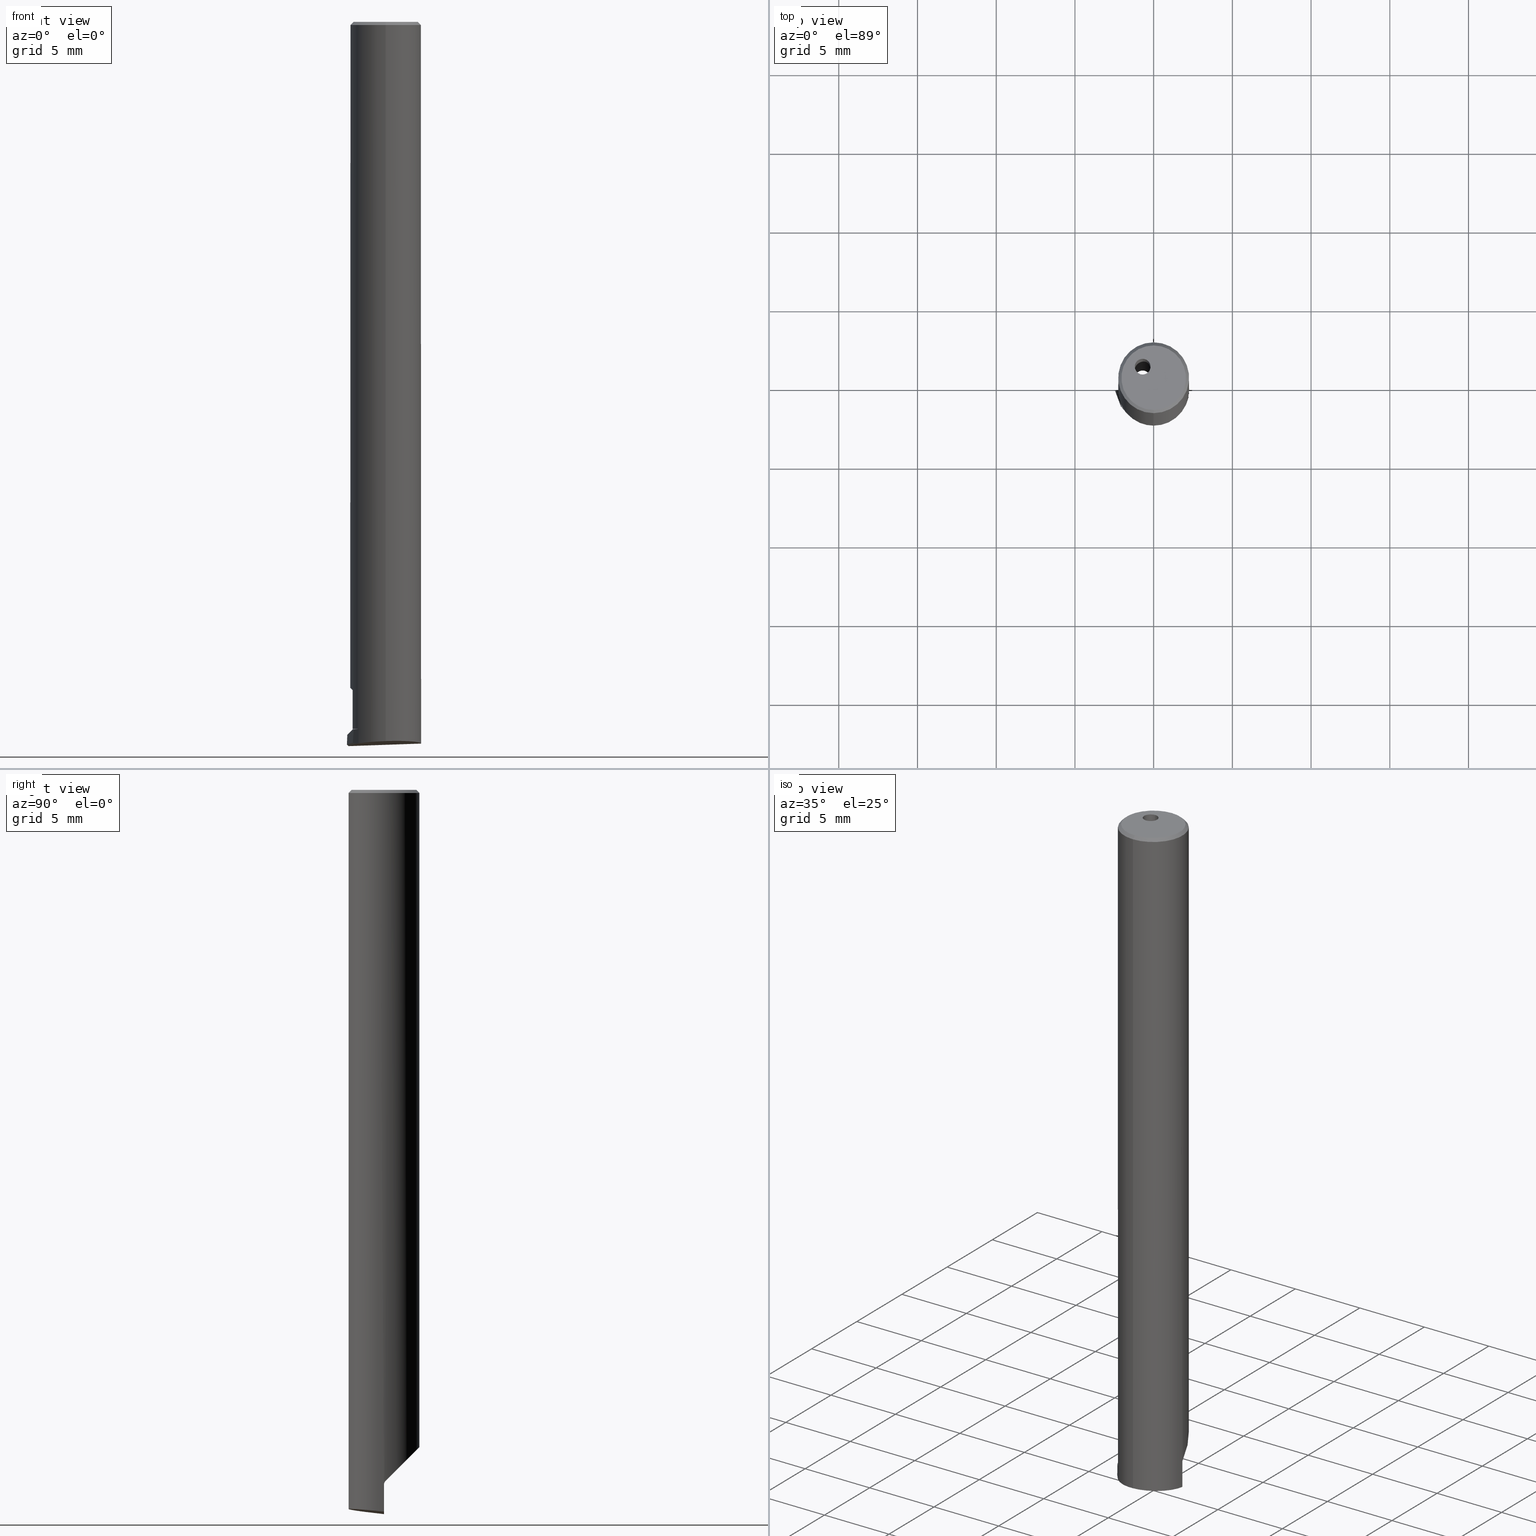
[diagram: canonical four-view strip — front | top / right | iso, engineering-drawing reading convention]
A machine part, canonical four-view strip (front | top / right | iso — engineering-drawing reading convention). The complete STEP part file that produces these views, byte-faithful:
ISO-10303-21;
HEADER;
FILE_DESCRIPTION(('no description'),'unknown implementation level');
FILE_NAME('2DA7B1E6-9203-4665-879B-F61DBD5B19BC_export.stp','  ',('CIMSOURCE GmbH'),('CADClick - KiM GmbH - www.kimweb.de'),'unknown preprocess','ACIS','unknown authorization');
FILE_SCHEMA(('automotive_design'));
ENDSEC;
DATA;
#1=MECHANICAL_DESIGN_GEOMETRIC_PRESENTATION_REPRESENTATION(' ',(#10,#11,#12,#13,#14,#15,#16,#17,#18,#19,#20,#21,#22,#23,#24,#25,#26,#27,#28,#29,#30,#31,#32,#33,#34,#35,#36,#37,#38,#39,#40,#41,#42,#43,#44,#45,#46,#47,#48,#49,#50,#51,#52,#53,#54,#55,#56,#57,#58,#59,#60,#61,#62,#63,#64,#65,#66,#67,#68,#69,#70,#71,#72,#73,#74,#75,#76,#77,#78,#79,#80,#81,#82,#83,#84,#85,#86,#87,#88,#89,#90,#91,#92,#93,#94,#95,#96,#97,#98,#99,#100,#101,#102,#103,#104,#105,#106,#107,#108,#109,#110),#6);
#2=PRODUCT_DEFINITION_CONTEXT('',#111,'design');
#3=APPLICATION_PROTOCOL_DEFINITION('INTERNATIONAL STANDARD','automotive_design',1994,#111);
#4=PRODUCT_CATEGORY_RELATIONSHIP('NONE','NONE',#112,#113);
#5=SHAPE_DEFINITION_REPRESENTATION(#114,#115);
#6= (GEOMETRIC_REPRESENTATION_CONTEXT(3)GLOBAL_UNCERTAINTY_ASSIGNED_CONTEXT((#118))GLOBAL_UNIT_ASSIGNED_CONTEXT((#120,#121,#122))REPRESENTATION_CONTEXT('NONE','WORKSPACE'));
#10=STYLED_ITEM('',(#124),#125);
#11=STYLED_ITEM('',(#126),#127);
#12=STYLED_ITEM('',(#128),#129);
#13=STYLED_ITEM('',(#130),#131);
#14=STYLED_ITEM('',(#132),#133);
#15=STYLED_ITEM('',(#134),#135);
#16=STYLED_ITEM('',(#136),#137);
#17=STYLED_ITEM('',(#138),#139);
#18=STYLED_ITEM('',(#140),#141);
#19=STYLED_ITEM('',(#142),#143);
#20=STYLED_ITEM('',(#144),#145);
#21=STYLED_ITEM('',(#146),#147);
#22=STYLED_ITEM('',(#148),#149);
#23=STYLED_ITEM('',(#150),#151);
#24=STYLED_ITEM('',(#152),#153);
#25=STYLED_ITEM('',(#154),#155);
#26=STYLED_ITEM('',(#156),#157);
#27=STYLED_ITEM('',(#158),#159);
#28=STYLED_ITEM('',(#160),#161);
#29=STYLED_ITEM('',(#162),#163);
#30=STYLED_ITEM('',(#164),#165);
#31=STYLED_ITEM('',(#166),#167);
#32=STYLED_ITEM('',(#168),#169);
#33=STYLED_ITEM('',(#170),#171);
#34=STYLED_ITEM('',(#172),#173);
#35=STYLED_ITEM('',(#174),#175);
#36=STYLED_ITEM('',(#176),#177);
#37=STYLED_ITEM('',(#178),#179);
#38=STYLED_ITEM('',(#180),#181);
#39=STYLED_ITEM('',(#182),#183);
#40=STYLED_ITEM('',(#184),#185);
#41=STYLED_ITEM('',(#186),#187);
#42=STYLED_ITEM('',(#188),#189);
#43=STYLED_ITEM('',(#190),#191);
#44=STYLED_ITEM('',(#192),#193);
#45=STYLED_ITEM('',(#194),#195);
#46=STYLED_ITEM('',(#196),#197);
#47=STYLED_ITEM('',(#198),#199);
#48=STYLED_ITEM('',(#200),#201);
#49=STYLED_ITEM('',(#202),#203);
#50=STYLED_ITEM('',(#204),#205);
#51=STYLED_ITEM('',(#206),#207);
#52=STYLED_ITEM('',(#208),#209);
#53=STYLED_ITEM('',(#210),#211);
#54=STYLED_ITEM('',(#212),#213);
#55=STYLED_ITEM('',(#214),#215);
#56=STYLED_ITEM('',(#216),#217);
#57=STYLED_ITEM('',(#218),#219);
#58=STYLED_ITEM('',(#220),#221);
#59=STYLED_ITEM('',(#222),#223);
#60=STYLED_ITEM('',(#224),#225);
#61=STYLED_ITEM('',(#226),#227);
#62=STYLED_ITEM('',(#228),#229);
#63=STYLED_ITEM('',(#230),#231);
#64=STYLED_ITEM('',(#232),#233);
#65=STYLED_ITEM('',(#234),#235);
#66=STYLED_ITEM('',(#236),#237);
#67=STYLED_ITEM('',(#238),#239);
#68=STYLED_ITEM('',(#240),#241);
#69=STYLED_ITEM('',(#242),#243);
#70=STYLED_ITEM('',(#244),#245);
#71=STYLED_ITEM('',(#246),#247);
#72=STYLED_ITEM('',(#248),#249);
#73=STYLED_ITEM('',(#250),#251);
#74=STYLED_ITEM('',(#252),#253);
#75=STYLED_ITEM('',(#254),#255);
#76=STYLED_ITEM('',(#256),#257);
#77=STYLED_ITEM('',(#258),#259);
#78=STYLED_ITEM('',(#260),#261);
#79=STYLED_ITEM('',(#262),#263);
#80=STYLED_ITEM('',(#264),#265);
#81=STYLED_ITEM('',(#266),#267);
#82=STYLED_ITEM('',(#268),#269);
#83=STYLED_ITEM('',(#270),#271);
#84=STYLED_ITEM('',(#272),#273);
#85=STYLED_ITEM('',(#274),#275);
#86=STYLED_ITEM('',(#276),#277);
#87=STYLED_ITEM('',(#278),#279);
#88=STYLED_ITEM('',(#280),#281);
#89=STYLED_ITEM('',(#282),#283);
#90=STYLED_ITEM('',(#284),#285);
#91=STYLED_ITEM('',(#286),#287);
#92=STYLED_ITEM('',(#288),#289);
#93=STYLED_ITEM('',(#290),#291);
#94=STYLED_ITEM('',(#292),#293);
#95=STYLED_ITEM('',(#294),#295);
#96=STYLED_ITEM('',(#296),#297);
#97=STYLED_ITEM('',(#298),#299);
#98=STYLED_ITEM('',(#300),#301);
#99=STYLED_ITEM('',(#302),#303);
#100=STYLED_ITEM('',(#304),#305);
#101=STYLED_ITEM('',(#306),#307);
#102=STYLED_ITEM('',(#308),#309);
#103=STYLED_ITEM('',(#310),#311);
#104=STYLED_ITEM('',(#312),#313);
#105=STYLED_ITEM('',(#314),#315);
#106=STYLED_ITEM('',(#316),#317);
#107=STYLED_ITEM('',(#318),#319);
#108=STYLED_ITEM('',(#320),#321);
#109=STYLED_ITEM('',(#322),#323);
#110=STYLED_ITEM('',(#324),#325);
#111=APPLICATION_CONTEXT(' ');
#112=PRODUCT_CATEGORY('part','NONE');
#113=PRODUCT_RELATED_PRODUCT_CATEGORY('detail',' ',(#326));
#114=PRODUCT_DEFINITION_SHAPE('NONE','NONE',#327);
#115=ADVANCED_BREP_SHAPE_REPRESENTATION('Fase2',(#173,#328),#6);
#118=UNCERTAINTY_MEASURE_WITH_UNIT(LENGTH_MEASURE(1.0E-006),#120,'','');
#120= (CONVERSION_BASED_UNIT('MILLIMETRE',#331)LENGTH_UNIT()NAMED_UNIT(#334));
#121= (NAMED_UNIT(#336)PLANE_ANGLE_UNIT()SI_UNIT($,.RADIAN.));
#122= (NAMED_UNIT(#336)SOLID_ANGLE_UNIT()SI_UNIT($,.STERADIAN.));
#124=PRESENTATION_STYLE_ASSIGNMENT((#342));
#125=EDGE_CURVE('NONE',#129,#263,#343,.T.);
#126=PRESENTATION_STYLE_ASSIGNMENT((#344));
#127=VERTEX_POINT('NONE',#345);
#128=PRESENTATION_STYLE_ASSIGNMENT((#346));
#129=VERTEX_POINT('NONE',#347);
#130=PRESENTATION_STYLE_ASSIGNMENT((#348));
#131=VERTEX_POINT('NONE',#349);
#132=PRESENTATION_STYLE_ASSIGNMENT((#350));
#133=EDGE_CURVE('NONE',#305,#253,#351,.T.);
#134=PRESENTATION_STYLE_ASSIGNMENT((#352));
#135=ADVANCED_FACE('NONE',(#353),#354,.F.);
#136=PRESENTATION_STYLE_ASSIGNMENT((#355));
#137=EDGE_CURVE('NONE',#255,#323,#356,.T.);
#138=PRESENTATION_STYLE_ASSIGNMENT((#357));
#139=VERTEX_POINT('NONE',#358);
#140=PRESENTATION_STYLE_ASSIGNMENT((#359));
#141=ADVANCED_FACE('NONE',(#360),#361,.F.);
#142=PRESENTATION_STYLE_ASSIGNMENT((#362));
#143=ADVANCED_FACE('NONE',(#363),#364,.F.);
#144=PRESENTATION_STYLE_ASSIGNMENT((#365));
#145=EDGE_CURVE('NONE',#211,#241,#366,.T.);
#146=PRESENTATION_STYLE_ASSIGNMENT((#367));
#147=EDGE_CURVE('NONE',#275,#165,#368,.T.);
#148=PRESENTATION_STYLE_ASSIGNMENT((#369));
#149=VERTEX_POINT('NONE',#370);
#150=PRESENTATION_STYLE_ASSIGNMENT((#371));
#151=EDGE_CURVE('NONE',#321,#281,#372,.T.);
#152=PRESENTATION_STYLE_ASSIGNMENT((#373));
#153=EDGE_CURVE('NONE',#241,#289,#374,.T.);
#154=PRESENTATION_STYLE_ASSIGNMENT((#375));
#155=VERTEX_POINT('NONE',#376);
#156=PRESENTATION_STYLE_ASSIGNMENT((#377));
#157=VERTEX_POINT('NONE',#378);
#158=PRESENTATION_STYLE_ASSIGNMENT((#379));
#159=EDGE_CURVE('NONE',#315,#195,#380,.T.);
#160=PRESENTATION_STYLE_ASSIGNMENT((#381));
#161=EDGE_CURVE('NONE',#157,#279,#382,.T.);
#162=PRESENTATION_STYLE_ASSIGNMENT((#383));
#163=VERTEX_POINT('NONE',#384);
#164=PRESENTATION_STYLE_ASSIGNMENT((#385));
#165=VERTEX_POINT('NONE',#386);
#166=PRESENTATION_STYLE_ASSIGNMENT((#387));
#167=EDGE_CURVE('NONE',#287,#289,#388,.T.);
#168=PRESENTATION_STYLE_ASSIGNMENT((#389));
#169=VERTEX_POINT('NONE',#390);
#170=PRESENTATION_STYLE_ASSIGNMENT((#391));
#171=EDGE_CURVE('NONE',#169,#139,#392,.T.);
#172=PRESENTATION_STYLE_ASSIGNMENT((#393));
#173=MANIFOLD_SOLID_BREP('Fase2',#394);
#174=PRESENTATION_STYLE_ASSIGNMENT((#395));
#175=ADVANCED_FACE('NONE',(#396,#397),#398,.F.);
#176=PRESENTATION_STYLE_ASSIGNMENT((#399));
#177=EDGE_CURVE('NONE',#239,#315,#400,.T.);
#178=PRESENTATION_STYLE_ASSIGNMENT((#401));
#179=EDGE_CURVE('NONE',#165,#321,#402,.T.);
#180=PRESENTATION_STYLE_ASSIGNMENT((#403));
#181=VERTEX_POINT('NONE',#404);
#182=PRESENTATION_STYLE_ASSIGNMENT((#405));
#183=ADVANCED_FACE('NONE',(#406,#407),#408,.F.);
#184=PRESENTATION_STYLE_ASSIGNMENT((#409));
#185=EDGE_CURVE('NONE',#253,#155,#410,.T.);
#186=PRESENTATION_STYLE_ASSIGNMENT((#411));
#187=EDGE_CURVE('NONE',#131,#241,#412,.T.);
#188=PRESENTATION_STYLE_ASSIGNMENT((#413));
#189=EDGE_CURVE('NONE',#263,#129,#414,.T.);
#190=PRESENTATION_STYLE_ASSIGNMENT((#415));
#191=EDGE_CURVE('NONE',#269,#305,#416,.T.);
#192=PRESENTATION_STYLE_ASSIGNMENT((#417));
#193=ADVANCED_FACE('NONE',(#418),#419,.F.);
#194=PRESENTATION_STYLE_ASSIGNMENT((#420));
#195=VERTEX_POINT('NONE',#421);
#196=PRESENTATION_STYLE_ASSIGNMENT((#422));
#197=EDGE_CURVE('NONE',#263,#231,#423,.T.);
#198=PRESENTATION_STYLE_ASSIGNMENT((#424));
#199=ADVANCED_FACE('NONE',(#425),#426,.T.);
#200=PRESENTATION_STYLE_ASSIGNMENT((#427));
#201=EDGE_CURVE('NONE',#149,#253,#428,.T.);
#202=PRESENTATION_STYLE_ASSIGNMENT((#429));
#203=ADVANCED_FACE('NONE',(#430),#431,.F.);
#204=PRESENTATION_STYLE_ASSIGNMENT((#432));
#205=VERTEX_POINT('NONE',#433);
#206=PRESENTATION_STYLE_ASSIGNMENT((#434));
#207=EDGE_CURVE('NONE',#205,#231,#435,.T.);
#208=PRESENTATION_STYLE_ASSIGNMENT((#436));
#209=EDGE_CURVE('NONE',#305,#323,#437,.T.);
#210=PRESENTATION_STYLE_ASSIGNMENT((#438));
#211=VERTEX_POINT('NONE',#439);
#212=PRESENTATION_STYLE_ASSIGNMENT((#440));
#213=EDGE_CURVE('NONE',#181,#205,#441,.T.);
#214=PRESENTATION_STYLE_ASSIGNMENT((#442));
#215=EDGE_CURVE('NONE',#281,#287,#443,.T.);
#216=PRESENTATION_STYLE_ASSIGNMENT((#444));
#217=EDGE_CURVE('NONE',#269,#139,#445,.T.);
#218=PRESENTATION_STYLE_ASSIGNMENT((#446));
#219=EDGE_CURVE('NONE',#139,#299,#447,.T.);
#220=PRESENTATION_STYLE_ASSIGNMENT((#448));
#221=ADVANCED_FACE('NONE',(#449),#450,.T.);
#222=PRESENTATION_STYLE_ASSIGNMENT((#451));
#223=EDGE_CURVE('NONE',#323,#149,#452,.T.);
#224=PRESENTATION_STYLE_ASSIGNMENT((#453));
#225=ADVANCED_FACE('NONE',(#454),#455,.T.);
#226=PRESENTATION_STYLE_ASSIGNMENT((#456));
#227=ADVANCED_FACE('NONE',(#457),#458,.T.);
#228=PRESENTATION_STYLE_ASSIGNMENT((#459));
#229=ADVANCED_FACE('NONE',(#460),#461,.F.);
#230=PRESENTATION_STYLE_ASSIGNMENT((#462));
#231=VERTEX_POINT('NONE',#463);
#232=PRESENTATION_STYLE_ASSIGNMENT((#464));
#233=EDGE_CURVE('NONE',#195,#315,#465,.T.);
#234=PRESENTATION_STYLE_ASSIGNMENT((#466));
#235=EDGE_CURVE('NONE',#279,#211,#467,.T.);
#236=PRESENTATION_STYLE_ASSIGNMENT((#468));
#237=ADVANCED_FACE('NONE',(#469),#470,.T.);
#238=PRESENTATION_STYLE_ASSIGNMENT((#471));
#239=VERTEX_POINT('NONE',#472);
#240=PRESENTATION_STYLE_ASSIGNMENT((#473));
#241=VERTEX_POINT('NONE',#474);
#242=PRESENTATION_STYLE_ASSIGNMENT((#475));
#243=ADVANCED_FACE('NONE',(#476),#477,.F.);
#244=PRESENTATION_STYLE_ASSIGNMENT((#478));
#245=EDGE_CURVE('NONE',#231,#205,#479,.T.);
#246=PRESENTATION_STYLE_ASSIGNMENT((#480));
#247=EDGE_CURVE('NONE',#309,#255,#481,.T.);
#248=PRESENTATION_STYLE_ASSIGNMENT((#482));
#249=EDGE_CURVE('NONE',#211,#299,#483,.T.);
#250=PRESENTATION_STYLE_ASSIGNMENT((#484));
#251=EDGE_CURVE('NONE',#157,#279,#485,.T.);
#252=PRESENTATION_STYLE_ASSIGNMENT((#486));
#253=VERTEX_POINT('NONE',#487);
#254=PRESENTATION_STYLE_ASSIGNMENT((#488));
#255=VERTEX_POINT('NONE',#489);
#256=PRESENTATION_STYLE_ASSIGNMENT((#490));
#257=EDGE_CURVE('NONE',#287,#275,#491,.T.);
#258=PRESENTATION_STYLE_ASSIGNMENT((#492));
#259=EDGE_CURVE('NONE',#289,#309,#493,.T.);
#260=PRESENTATION_STYLE_ASSIGNMENT((#494));
#261=EDGE_CURVE('NONE',#163,#275,#495,.T.);
#262=PRESENTATION_STYLE_ASSIGNMENT((#496));
#263=VERTEX_POINT('NONE',#497);
#264=PRESENTATION_STYLE_ASSIGNMENT((#498));
#265=EDGE_CURVE('NONE',#149,#181,#499,.T.);
#266=PRESENTATION_STYLE_ASSIGNMENT((#500));
#267=EDGE_CURVE('NONE',#299,#131,#501,.T.);
#268=PRESENTATION_STYLE_ASSIGNMENT((#502));
#269=VERTEX_POINT('NONE',#503);
#270=PRESENTATION_STYLE_ASSIGNMENT((#504));
#271=EDGE_CURVE('NONE',#155,#157,#505,.T.);
#272=PRESENTATION_STYLE_ASSIGNMENT((#506));
#273=ADVANCED_FACE('NONE',(#507),#508,.F.);
#274=PRESENTATION_STYLE_ASSIGNMENT((#509));
#275=VERTEX_POINT('NONE',#510);
#276=PRESENTATION_STYLE_ASSIGNMENT((#511));
#277=EDGE_CURVE('NONE',#181,#155,#512,.T.);
#278=PRESENTATION_STYLE_ASSIGNMENT((#513));
#279=VERTEX_POINT('NONE',#514);
#280=PRESENTATION_STYLE_ASSIGNMENT((#515));
#281=VERTEX_POINT('NONE',#516);
#282=PRESENTATION_STYLE_ASSIGNMENT((#517));
#283=EDGE_CURVE('NONE',#127,#195,#518,.T.);
#284=PRESENTATION_STYLE_ASSIGNMENT((#519));
#285=ADVANCED_FACE('NONE',(#520),#521,.F.);
#286=PRESENTATION_STYLE_ASSIGNMENT((#522));
#287=VERTEX_POINT('NONE',#523);
#288=PRESENTATION_STYLE_ASSIGNMENT((#524));
#289=VERTEX_POINT('NONE',#525);
#290=PRESENTATION_STYLE_ASSIGNMENT((#526));
#291=EDGE_CURVE('NONE',#129,#205,#527,.T.);
#292=PRESENTATION_STYLE_ASSIGNMENT((#528));
#293=ADVANCED_FACE('NONE',(#529),#530,.F.);
#294=PRESENTATION_STYLE_ASSIGNMENT((#531));
#295=ADVANCED_FACE('NONE',(#532),#533,.F.);
#296=PRESENTATION_STYLE_ASSIGNMENT((#534));
#297=EDGE_CURVE('NONE',#309,#231,#535,.T.);
#298=PRESENTATION_STYLE_ASSIGNMENT((#536));
#299=VERTEX_POINT('NONE',#537);
#300=PRESENTATION_STYLE_ASSIGNMENT((#538));
#301=EDGE_CURVE('NONE',#239,#127,#539,.T.);
#302=PRESENTATION_STYLE_ASSIGNMENT((#540));
#303=EDGE_CURVE('NONE',#127,#239,#541,.T.);
#304=PRESENTATION_STYLE_ASSIGNMENT((#542));
#305=VERTEX_POINT('NONE',#543);
#306=PRESENTATION_STYLE_ASSIGNMENT((#544));
#307=EDGE_CURVE('NONE',#163,#255,#545,.T.);
#308=PRESENTATION_STYLE_ASSIGNMENT((#546));
#309=VERTEX_POINT('NONE',#547);
#310=PRESENTATION_STYLE_ASSIGNMENT((#548));
#311=EDGE_CURVE('NONE',#131,#281,#549,.T.);
#312=PRESENTATION_STYLE_ASSIGNMENT((#550));
#313=ADVANCED_FACE('NONE',(#551),#552,.F.);
#314=PRESENTATION_STYLE_ASSIGNMENT((#553));
#315=VERTEX_POINT('NONE',#554);
#316=PRESENTATION_STYLE_ASSIGNMENT((#555));
#317=EDGE_CURVE('NONE',#165,#163,#556,.T.);
#318=PRESENTATION_STYLE_ASSIGNMENT((#557));
#319=EDGE_CURVE('NONE',#169,#269,#558,.T.);
#320=PRESENTATION_STYLE_ASSIGNMENT((#559));
#321=VERTEX_POINT('NONE',#560);
#322=PRESENTATION_STYLE_ASSIGNMENT((#561));
#323=VERTEX_POINT('NONE',#562);
#324=PRESENTATION_STYLE_ASSIGNMENT((#563));
#325=EDGE_CURVE('NONE',#321,#169,#564,.T.);
#326=PRODUCT('Fase2','Fase2','PART-Fase2-DESC',(#565));
#327=PRODUCT_DEFINITION('NONE','NONE',#566,#2);
#328=AXIS2_PLACEMENT_3D('',#567,#568,#569);
#331=LENGTH_MEASURE_WITH_UNIT(LENGTH_MEASURE(1.0),#570);
#334=DIMENSIONAL_EXPONENTS(1.0,0.0,0.0,0.0,0.0,0.0,0.0);
#336=DIMENSIONAL_EXPONENTS(0.0,0.0,0.0,0.0,0.0,0.0,0.0);
#342=CURVE_STYLE('',#571,POSITIVE_LENGTH_MEASURE(1.0E-006),#572);
#343=CIRCLE('',#573,2.05);
#344=POINT_STYLE(' ',#574,POSITIVE_LENGTH_MEASURE(1.0E-006),#575);
#345=CARTESIAN_POINT('',(-0.7,0.2,-43.8));
#346=POINT_STYLE(' ',#576,POSITIVE_LENGTH_MEASURE(1.0E-006),#577);
#347=CARTESIAN_POINT('',(0.0,2.05,0.0));
#348=POINT_STYLE(' ',#578,POSITIVE_LENGTH_MEASURE(1.0E-006),#579);
#349=CARTESIAN_POINT('',(-2.03175872927735,-1.07902284552398,-44.9505072995227));
#350=CURVE_STYLE('',#580,POSITIVE_LENGTH_MEASURE(1.0E-006),#581);
#351=CIRCLE('',#582,0.25);
#352=SURFACE_STYLE_USAGE(.BOTH.,#583);
#353=FACE_OUTER_BOUND('',#584,.T.);
#354=CYLINDRICAL_SURFACE('',#585,0.5);
#355=CURVE_STYLE('',#586,POSITIVE_LENGTH_MEASURE(1.0E-006),#587);
#356=LINE('',#588,#589);
#357=POINT_STYLE(' ',#590,POSITIVE_LENGTH_MEASURE(1.0E-006),#591);
#358=CARTESIAN_POINT('',(-2.1,-0.891479699096621,-44.95));
#359=SURFACE_STYLE_USAGE(.BOTH.,#592);
#360=FACE_OUTER_BOUND('',#593,.T.);
#361=CYLINDRICAL_SURFACE('',#594,0.5);
#362=SURFACE_STYLE_USAGE(.BOTH.,#595);
#363=FACE_OUTER_BOUND('',#596,.T.);
#364=PLANE('',#597);
#365=CURVE_STYLE('',#598,POSITIVE_LENGTH_MEASURE(1.0E-006),#599);
#366=CIRCLE('',#600,2.25);
#367=CURVE_STYLE('',#601,POSITIVE_LENGTH_MEASURE(1.0E-006),#602);
#368=LINE('',#603,#604);
#369=POINT_STYLE(' ',#605,POSITIVE_LENGTH_MEASURE(1.0E-006),#606);
#370=CARTESIAN_POINT('',(2.24880820606123,0.0732233047033652,-43.9267766952966));
#371=CURVE_STYLE('',#607,POSITIVE_LENGTH_MEASURE(1.0E-006),#608);
#372=LINE('',#609,#610);
#373=CURVE_STYLE('',#611,POSITIVE_LENGTH_MEASURE(1.0E-006),#612);
#374=LINE('',#613,#614);
#375=POINT_STYLE(' ',#615,POSITIVE_LENGTH_MEASURE(1.0E-006),#616);
#376=CARTESIAN_POINT('',(-2.1,0.807774721070173,-43.1922252789298));
#377=POINT_STYLE(' ',#617,POSITIVE_LENGTH_MEASURE(1.0E-006),#618);
#378=CARTESIAN_POINT('',(-2.1,0.807774721070152,-42.45));
#379=CURVE_STYLE('',#619,POSITIVE_LENGTH_MEASURE(1.0E-006),#620);
#380=CIRCLE('',#621,0.5);
#381=CURVE_STYLE('',#622,POSITIVE_LENGTH_MEASURE(1.0E-006),#623);
#382=(B_SPLINE_CURVE(3,(#625,#626,#627,#628),.UNSPECIFIED.,.F.,.F.)B_SPLINE_CURVE_WITH_KNOTS((4,4),(5.91597728662176,6.65039332773741),.UNSPECIFIED.)RATIONAL_B_SPLINE_CURVE((1.0,0.955555555555558,0.955555555555558,1.0))BOUNDED_CURVE()REPRESENTATION_ITEM('')GEOMETRIC_REPRESENTATION_ITEM()CURVE());
#383=POINT_STYLE(' ',#635,POSITIVE_LENGTH_MEASURE(1.0E-006),#636);
#384=CARTESIAN_POINT('',(-2.34825449350712,0.0,-46.0));
#385=POINT_STYLE(' ',#637,POSITIVE_LENGTH_MEASURE(1.0E-006),#638);
#386=CARTESIAN_POINT('',(-2.35741138789529,0.0,-46.0));
#387=CURVE_STYLE('',#639,POSITIVE_LENGTH_MEASURE(1.0E-006),#640);
#388=LINE('',#641,#642);
#389=POINT_STYLE(' ',#643,POSITIVE_LENGTH_MEASURE(1.0E-006),#644);
#390=CARTESIAN_POINT('',(-2.43699546910177,0.0,-45.2869954691018));
#391=CURVE_STYLE('',#645,POSITIVE_LENGTH_MEASURE(1.0E-006),#646);
#392=LINE('',#647,#648);
#393=SURFACE_STYLE_USAGE(.BOTH.,#649);
#394=CLOSED_SHELL('',(#135,#227,#199,#175,#183,#237,#225,#293,#221,#193,#295,#285,#141,#203,#229,#243,#273,#143,#313));
#395=SURFACE_STYLE_USAGE(.BOTH.,#650);
#396=FACE_OUTER_BOUND('',#651,.T.);
#397=FACE_BOUND('',#652,.T.);
#398=PLANE('',#653);
#399=CURVE_STYLE('',#654,POSITIVE_LENGTH_MEASURE(1.0E-006),#655);
#400=LINE('',#656,#657);
#401=CURVE_STYLE('',#658,POSITIVE_LENGTH_MEASURE(1.0E-006),#659);
#402=LINE('',#660,#661);
#403=POINT_STYLE(' ',#662,POSITIVE_LENGTH_MEASURE(1.0E-006),#663);
#404=CARTESIAN_POINT('',(2.75545529808154E-016,2.25,-41.75));
#405=SURFACE_STYLE_USAGE(.BOTH.,#664);
#406=FACE_OUTER_BOUND('',#665,.T.);
#407=FACE_BOUND('',#666,.T.);
#408=PLANE('',#667);
#409=CURVE_STYLE('',#668,POSITIVE_LENGTH_MEASURE(1.0E-006),#669);
#410=LINE('',#670,#671);
#411=CURVE_STYLE('',#672,POSITIVE_LENGTH_MEASURE(1.0E-006),#673);
#412=B_SPLINE_CURVE_WITH_KNOTS('',3,(#674,#675,#676,#677),.UNSPECIFIED.,.F.,.F.,(4,4),(0.000459668553503559,0.000939804323552424),.UNSPECIFIED.);
#413=CURVE_STYLE('',#678,POSITIVE_LENGTH_MEASURE(1.0E-006),#679);
#414=CIRCLE('',#680,2.05);
#415=CURVE_STYLE('',#681,POSITIVE_LENGTH_MEASURE(1.0E-006),#682);
#416=LINE('',#683,#684);
#417=SURFACE_STYLE_USAGE(.BOTH.,#685);
#418=FACE_OUTER_BOUND('',#686,.T.);
#419=PLANE('',#687);
#420=POINT_STYLE(' ',#688,POSITIVE_LENGTH_MEASURE(1.0E-006),#689);
#421=CARTESIAN_POINT('',(-0.7,0.2,0.0));
#422=CURVE_STYLE('',#690,POSITIVE_LENGTH_MEASURE(1.0E-006),#691);
#423=LINE('',#692,#693);
#424=SURFACE_STYLE_USAGE(.BOTH.,#694);
#425=FACE_OUTER_BOUND('',#695,.T.);
#426=CYLINDRICAL_SURFACE('',#696,2.25);
#427=CURVE_STYLE('',#697,POSITIVE_LENGTH_MEASURE(1.0E-006),#698);
#428=LINE('',#699,#700);
#429=SURFACE_STYLE_USAGE(.BOTH.,#701);
#430=FACE_OUTER_BOUND('',#702,.T.);
#431=PLANE('',#703);
#432=POINT_STYLE(' ',#704,POSITIVE_LENGTH_MEASURE(1.0E-006),#705);
#433=CARTESIAN_POINT('',(2.75545529808154E-016,2.25,-0.200000000000001));
#434=CURVE_STYLE('',#706,POSITIVE_LENGTH_MEASURE(1.0E-006),#707);
#435=CIRCLE('',#708,2.25);
#436=CURVE_STYLE('',#709,POSITIVE_LENGTH_MEASURE(1.0E-006),#710);
#437=LINE('',#711,#712);
#438=POINT_STYLE(' ',#713,POSITIVE_LENGTH_MEASURE(1.0E-006),#714);
#439=CARTESIAN_POINT('',(-2.1,-0.807774721070175,-44.9));
#440=CURVE_STYLE('',#715,POSITIVE_LENGTH_MEASURE(1.0E-006),#716);
#441=LINE('',#717,#718);
#442=CURVE_STYLE('',#719,POSITIVE_LENGTH_MEASURE(1.0E-006),#720);
#443=LINE('',#721,#722);
#444=CURVE_STYLE('',#723,POSITIVE_LENGTH_MEASURE(1.0E-006),#724);
#445=LINE('',#725,#726);
#446=CURVE_STYLE('',#727,POSITIVE_LENGTH_MEASURE(1.0E-006),#728);
#447=LINE('',#729,#730);
#448=SURFACE_STYLE_USAGE(.BOTH.,#731);
#449=FACE_OUTER_BOUND('',#732,.T.);
#450=CONICAL_SURFACE('',#733,2.05,0.785398163397445);
#451=CURVE_STYLE('',#734,POSITIVE_LENGTH_MEASURE(1.0E-006),#735);
#452=B_SPLINE_CURVE_WITH_KNOTS('',3,(#736,#737,#738,#739),.UNSPECIFIED.,.F.,.F.,(4,4),(0.0,0.000195194090627246),.UNSPECIFIED.);
#453=SURFACE_STYLE_USAGE(.BOTH.,#740);
#454=FACE_OUTER_BOUND('',#741,.T.);
#455=CONICAL_SURFACE('',#742,2.43141435954025,0.785398163397506);
#456=SURFACE_STYLE_USAGE(.BOTH.,#743);
#457=FACE_OUTER_BOUND('',#744,.T.);
#458=CONICAL_SURFACE('',#745,2.05,0.785398163397445);
#459=SURFACE_STYLE_USAGE(.BOTH.,#746);
#460=FACE_OUTER_BOUND('',#747,.T.);
#461=PLANE('',#748);
#462=POINT_STYLE(' ',#749,POSITIVE_LENGTH_MEASURE(1.0E-006),#750);
#463=CARTESIAN_POINT('',(0.0,-2.25,-0.200000000000001));
#464=CURVE_STYLE('',#751,POSITIVE_LENGTH_MEASURE(1.0E-006),#752);
#465=CIRCLE('',#753,0.5);
#466=CURVE_STYLE('',#754,POSITIVE_LENGTH_MEASURE(1.0E-006),#755);
#467=LINE('',#756,#757);
#468=SURFACE_STYLE_USAGE(.BOTH.,#758);
#469=FACE_OUTER_BOUND('',#759,.T.);
#470=CYLINDRICAL_SURFACE('',#760,2.25);
#471=POINT_STYLE(' ',#761,POSITIVE_LENGTH_MEASURE(1.0E-006),#762);
#472=CARTESIAN_POINT('',(-0.7,1.2,-42.8));
#473=POINT_STYLE(' ',#763,POSITIVE_LENGTH_MEASURE(1.0E-006),#764);
#474=CARTESIAN_POINT('',(-1.7235999970177,-1.44627212179472,-44.9));
#475=SURFACE_STYLE_USAGE(.BOTH.,#765);
#476=FACE_OUTER_BOUND('',#766,.T.);
#477=PLANE('',#767);
#478=CURVE_STYLE('',#768,POSITIVE_LENGTH_MEASURE(1.0E-006),#769);
#479=CIRCLE('',#770,2.25);
#480=CURVE_STYLE('',#771,POSITIVE_LENGTH_MEASURE(1.0E-006),#772);
#481=(B_SPLINE_CURVE(3,(#774,#775,#776,#777),.UNSPECIFIED.,.F.,.F.)B_SPLINE_CURVE_WITH_KNOTS((4,4),(5.96259332171268,7.53338964850758),.UNSPECIFIED.)RATIONAL_B_SPLINE_CURVE((1.0,0.804737854124365,0.804737854124365,1.0))BOUNDED_CURVE()REPRESENTATION_ITEM('')GEOMETRIC_REPRESENTATION_ITEM()CURVE());
#482=CURVE_STYLE('',#784,POSITIVE_LENGTH_MEASURE(1.0E-006),#785);
#483=B_SPLINE_CURVE_WITH_KNOTS('',3,(#786,#787,#788,#789),.UNSPECIFIED.,.F.,.F.,(4,4),(0.00170651212628569,0.00179285955997892),.UNSPECIFIED.);
#484=CURVE_STYLE('',#790,POSITIVE_LENGTH_MEASURE(1.0E-006),#791);
#485=LINE('',#792,#793);
#486=POINT_STYLE(' ',#794,POSITIVE_LENGTH_MEASURE(1.0E-006),#795);
#487=CARTESIAN_POINT('',(-2.1,0.0732233047033637,-43.9267766952966));
#488=POINT_STYLE(' ',#796,POSITIVE_LENGTH_MEASURE(1.0E-006),#797);
#489=CARTESIAN_POINT('',(2.25,0.0,-45.8394254147678));
#490=CURVE_STYLE('',#798,POSITIVE_LENGTH_MEASURE(1.0E-006),#799);
#491=LINE('',#800,#801);
#492=CURVE_STYLE('',#802,POSITIVE_LENGTH_MEASURE(1.0E-006),#803);
#493=(B_SPLINE_CURVE(3,(#805,#806,#807,#808),.UNSPECIFIED.,.F.,.F.)B_SPLINE_CURVE_WITH_KNOTS((4,4),(5.08992869571552,5.96259332171268),.UNSPECIFIED.)RATIONAL_B_SPLINE_CURVE((1.0,0.9375385246911,0.9375385246911,1.0))BOUNDED_CURVE()REPRESENTATION_ITEM('')GEOMETRIC_REPRESENTATION_ITEM()CURVE());
#494=CURVE_STYLE('',#815,POSITIVE_LENGTH_MEASURE(1.0E-006),#816);
#495=LINE('',#817,#818);
#496=POINT_STYLE(' ',#819,POSITIVE_LENGTH_MEASURE(1.0E-006),#820);
#497=CARTESIAN_POINT('',(2.63299061816681E-016,-2.05,0.0));
#498=CURVE_STYLE('',#821,POSITIVE_LENGTH_MEASURE(1.0E-006),#822);
#499=(B_SPLINE_CURVE(3,(#824,#825,#826,#827),.UNSPECIFIED.,.F.,.F.)B_SPLINE_CURVE_WITH_KNOTS((4,4),(4.74493841856295,6.28318530717959),.UNSPECIFIED.)RATIONAL_B_SPLINE_CURVE((1.0,0.812347063356753,0.812347063356753,1.0))BOUNDED_CURVE()REPRESENTATION_ITEM('')GEOMETRIC_REPRESENTATION_ITEM()CURVE());
#500=CURVE_STYLE('',#834,POSITIVE_LENGTH_MEASURE(1.0E-006),#835);
#501=B_SPLINE_CURVE_WITH_KNOTS('',3,(#836,#837,#838,#839),.UNSPECIFIED.,.F.,.F.,(4,4),(8.64710636591897E-005,0.000288467425746563),.UNSPECIFIED.);
#502=POINT_STYLE(' ',#840,POSITIVE_LENGTH_MEASURE(1.0E-006),#841);
#503=CARTESIAN_POINT('',(-2.1,0.0,-44.95));
#504=CURVE_STYLE('',#842,POSITIVE_LENGTH_MEASURE(1.0E-006),#843);
#505=LINE('',#844,#845);
#506=SURFACE_STYLE_USAGE(.BOTH.,#846);
#507=FACE_OUTER_BOUND('',#847,.T.);
#508=PLANE('',#848);
#509=POINT_STYLE(' ',#849,POSITIVE_LENGTH_MEASURE(1.0E-006),#850);
#510=CARTESIAN_POINT('',(-2.35611274506229,-0.00260930516779773,-46.0));
#511=CURVE_STYLE('',#851,POSITIVE_LENGTH_MEASURE(1.0E-006),#852);
#512=(B_SPLINE_CURVE(3,(#854,#855,#856,#857),.UNSPECIFIED.,.F.,.F.)B_SPLINE_CURVE_WITH_KNOTS((4,4),(0.0,1.20358830623706),.UNSPECIFIED.)RATIONAL_B_SPLINE_CURVE((1.0,0.882880821351591,0.882880821351591,1.0))BOUNDED_CURVE()REPRESENTATION_ITEM('')GEOMETRIC_REPRESENTATION_ITEM()CURVE());
#513=POINT_STYLE(' ',#864,POSITIVE_LENGTH_MEASURE(1.0E-006),#865);
#514=CARTESIAN_POINT('',(-2.1,-0.807774721070152,-42.45));
#515=POINT_STYLE(' ',#866,POSITIVE_LENGTH_MEASURE(1.0E-006),#867);
#516=CARTESIAN_POINT('',(-2.08663971339108,-1.01361823555236,-45.7867306170929));
#517=CURVE_STYLE('',#868,POSITIVE_LENGTH_MEASURE(1.0E-006),#869);
#518=LINE('',#870,#871);
#519=SURFACE_STYLE_USAGE(.BOTH.,#872);
#520=FACE_OUTER_BOUND('',#873,.T.);
#521=PLANE('',#874);
#522=POINT_STYLE(' ',#875,POSITIVE_LENGTH_MEASURE(1.0E-006),#876);
#523=CARTESIAN_POINT('',(-1.90315148815602,-1.23229098717498,-45.8548587111491));
#524=POINT_STYLE(' ',#877,POSITIVE_LENGTH_MEASURE(1.0E-006),#878);
#525=CARTESIAN_POINT('',(-1.7235999970177,-1.44627212179472,-45.8260846025512));
#526=CURVE_STYLE('',#879,POSITIVE_LENGTH_MEASURE(1.0E-006),#880);
#527=LINE('',#881,#882);
#528=SURFACE_STYLE_USAGE(.BOTH.,#883);
#529=FACE_OUTER_BOUND('',#884,.T.);
#530=PLANE('',#885);
#531=SURFACE_STYLE_USAGE(.BOTH.,#886);
#532=FACE_OUTER_BOUND('',#887,.T.);
#533=CYLINDRICAL_SURFACE('',#888,0.25);
#534=CURVE_STYLE('',#889,POSITIVE_LENGTH_MEASURE(1.0E-006),#890);
#535=LINE('',#891,#892);
#536=POINT_STYLE(' ',#893,POSITIVE_LENGTH_MEASURE(1.0E-006),#894);
#537=CARTESIAN_POINT('',(-2.1,-0.889500608233803,-44.9306164368539));
#538=CURVE_STYLE('',#895,POSITIVE_LENGTH_MEASURE(1.0E-006),#896);
#539=(B_SPLINE_CURVE(3,(#898,#899,#900,#901),.UNSPECIFIED.,.F.,.F.)B_SPLINE_CURVE_WITH_KNOTS((4,4),(0.0,3.14159265358979),.UNSPECIFIED.)RATIONAL_B_SPLINE_CURVE((1.0,0.333333333333333,0.333333333333333,1.0))BOUNDED_CURVE()REPRESENTATION_ITEM('')GEOMETRIC_REPRESENTATION_ITEM()CURVE());
#540=CURVE_STYLE('',#908,POSITIVE_LENGTH_MEASURE(1.0E-006),#909);
#541=(B_SPLINE_CURVE(3,(#911,#912,#913,#914),.UNSPECIFIED.,.F.,.F.)B_SPLINE_CURVE_WITH_KNOTS((4,4),(3.14159265358979,6.28318530717959),.UNSPECIFIED.)RATIONAL_B_SPLINE_CURVE((1.0,0.333333333333333,0.333333333333333,1.0))BOUNDED_CURVE()REPRESENTATION_ITEM('')GEOMETRIC_REPRESENTATION_ITEM()CURVE());
#542=POINT_STYLE(' ',#921,POSITIVE_LENGTH_MEASURE(1.0E-006),#922);
#543=CARTESIAN_POINT('',(-2.1,-2.16840434497101E-016,-44.1035533905933));
#544=CURVE_STYLE('',#923,POSITIVE_LENGTH_MEASURE(1.0E-006),#924);
#545=LINE('',#925,#926);
#546=POINT_STYLE(' ',#927,POSITIVE_LENGTH_MEASURE(1.0E-006),#928);
#547=CARTESIAN_POINT('',(0.0,-2.25,-45.6813684689799));
#548=CURVE_STYLE('',#929,POSITIVE_LENGTH_MEASURE(1.0E-006),#930);
#549=LINE('',#931,#932);
#550=SURFACE_STYLE_USAGE(.BOTH.,#933);
#551=FACE_OUTER_BOUND('',#934,.T.);
#552=PLANE('',#935);
#553=POINT_STYLE(' ',#936,POSITIVE_LENGTH_MEASURE(1.0E-006),#937);
#554=CARTESIAN_POINT('',(-0.7,1.2,0.0));
#555=CURVE_STYLE('',#938,POSITIVE_LENGTH_MEASURE(1.0E-006),#939);
#556=LINE('',#940,#941);
#557=CURVE_STYLE('',#942,POSITIVE_LENGTH_MEASURE(1.0E-006),#943);
#558=LINE('',#944,#945);
#559=POINT_STYLE(' ',#946,POSITIVE_LENGTH_MEASURE(1.0E-006),#947);
#560=CARTESIAN_POINT('',(-2.46001259250032,0.0,-45.9063695929868));
#561=POINT_STYLE(' ',#948,POSITIVE_LENGTH_MEASURE(1.0E-006),#949);
#562=CARTESIAN_POINT('',(2.25,0.0,-44.1035533905933));
#563=CURVE_STYLE('',#950,POSITIVE_LENGTH_MEASURE(1.0E-006),#951);
#564=LINE('',#952,#953);
#565=PRODUCT_CONTEXT('',#111,'mechanical');
#566=PRODUCT_DEFINITION_FORMATION_WITH_SPECIFIED_SOURCE(' ','NONE',#326,.NOT_KNOWN.);
#567=CARTESIAN_POINT('',(0.0,0.0,0.0));
#568=DIRECTION('',(0.0,0.0,1.0));
#569=DIRECTION('',(1.0,0.0,0.0));
#570= (NAMED_UNIT(#334)LENGTH_UNIT()SI_UNIT(.MILLI.,.METRE.));
#571=DRAUGHTING_PRE_DEFINED_CURVE_FONT('continuous');
#572=COLOUR_RGB('',1.0,1.0,1.0);
#573=AXIS2_PLACEMENT_3D('',#955,#956,#957);
#574=PRE_DEFINED_MARKER('');
#575=COLOUR_RGB('',1.0,1.0,1.0);
#576=PRE_DEFINED_MARKER('');
#577=COLOUR_RGB('',1.0,1.0,1.0);
#578=PRE_DEFINED_MARKER('');
#579=COLOUR_RGB('',1.0,1.0,1.0);
#580=DRAUGHTING_PRE_DEFINED_CURVE_FONT('continuous');
#581=COLOUR_RGB('',1.0,1.0,1.0);
#582=AXIS2_PLACEMENT_3D('',#958,#959,#960);
#583=SURFACE_SIDE_STYLE('',(#961));
#584=EDGE_LOOP('',(#962,#963,#964,#965));
#585=AXIS2_PLACEMENT_3D('',#966,#967,#968);
#586=DRAUGHTING_PRE_DEFINED_CURVE_FONT('continuous');
#587=COLOUR_RGB('',1.0,1.0,1.0);
#588=CARTESIAN_POINT('',(2.25,0.0,0.0));
#589=VECTOR('',#969,1000.0);
#590=PRE_DEFINED_MARKER('');
#591=COLOUR_RGB('',1.0,1.0,1.0);
#592=SURFACE_SIDE_STYLE('',(#970));
#593=EDGE_LOOP('',(#971,#972,#973,#974));
#594=AXIS2_PLACEMENT_3D('',#975,#976,#977);
#595=SURFACE_SIDE_STYLE('',(#978));
#596=EDGE_LOOP('',(#979,#980,#981,#982,#983,#984));
#597=AXIS2_PLACEMENT_3D('',#985,#986,#987);
#598=DRAUGHTING_PRE_DEFINED_CURVE_FONT('continuous');
#599=COLOUR_RGB('',1.0,1.0,1.0);
#600=AXIS2_PLACEMENT_3D('',#988,#989,#990);
#601=DRAUGHTING_PRE_DEFINED_CURVE_FONT('continuous');
#602=COLOUR_RGB('',1.0,1.0,1.0);
#603=CARTESIAN_POINT('',(-2.38284425672778,0.0511011298799601,-46.0));
#604=VECTOR('',#991,1000.0);
#605=PRE_DEFINED_MARKER('');
#606=COLOUR_RGB('',1.0,1.0,1.0);
#607=DRAUGHTING_PRE_DEFINED_CURVE_FONT('continuous');
#608=COLOUR_RGB('',1.0,1.0,1.0);
#609=CARTESIAN_POINT('',(-2.46396430043278,0.0107279436885443,-45.9076358292791));
#610=VECTOR('',#992,1000.0);
#611=DRAUGHTING_PRE_DEFINED_CURVE_FONT('continuous');
#612=COLOUR_RGB('',1.0,1.0,1.0);
#613=CARTESIAN_POINT('',(-1.7235999970177,-1.44627212179472,-44.0));
#614=VECTOR('',#993,1000.0);
#615=PRE_DEFINED_MARKER('');
#616=COLOUR_RGB('',1.0,1.0,1.0);
#617=PRE_DEFINED_MARKER('');
#618=COLOUR_RGB('',1.0,1.0,1.0);
#619=DRAUGHTING_PRE_DEFINED_CURVE_FONT('continuous');
#620=COLOUR_RGB('',1.0,1.0,1.0);
#621=AXIS2_PLACEMENT_3D('',#994,#995,#996);
#622=DRAUGHTING_PRE_DEFINED_CURVE_FONT('continuous');
#623=COLOUR_RGB('',1.0,1.0,1.0);
#625=CARTESIAN_POINT('',(-2.1,0.807774721070152,-42.45));
#626=CARTESIAN_POINT('',(-2.30232558139534,0.281781879443077,-42.2476744186047));
#627=CARTESIAN_POINT('',(-2.30232558139534,-0.281781879443076,-42.2476744186047));
#628=CARTESIAN_POINT('',(-2.1,-0.807774721070152,-42.45));
#635=PRE_DEFINED_MARKER('');
#636=COLOUR_RGB('',1.0,1.0,1.0);
#637=PRE_DEFINED_MARKER('');
#638=COLOUR_RGB('',1.0,1.0,1.0);
#639=DRAUGHTING_PRE_DEFINED_CURVE_FONT('continuous');
#640=COLOUR_RGB('',1.0,1.0,1.0);
#641=CARTESIAN_POINT('',(-1.60395771639482,-1.5888562395532,-45.8069112726405));
#642=VECTOR('',#997,1000.0);
#643=PRE_DEFINED_MARKER('');
#644=COLOUR_RGB('',1.0,1.0,1.0);
#645=DRAUGHTING_PRE_DEFINED_CURVE_FONT('continuous');
#646=COLOUR_RGB('',1.0,1.0,1.0);
#647=CARTESIAN_POINT('',(-17.7286819192366,40.4522591107285,-60.5786819192367));
#648=VECTOR('',#998,1000.0);
#649=SURFACE_SIDE_STYLE('',(#999));
#650=SURFACE_SIDE_STYLE('',(#1000));
#651=EDGE_LOOP('',(#1001,#1002));
#652=EDGE_LOOP('',(#1003,#1004));
#653=AXIS2_PLACEMENT_3D('',#1005,#1006,#1007);
#654=DRAUGHTING_PRE_DEFINED_CURVE_FONT('continuous');
#655=COLOUR_RGB('',1.0,1.0,1.0);
#656=CARTESIAN_POINT('',(-0.7,1.2,0.865685922736515));
#657=VECTOR('',#1008,1000.0);
#658=DRAUGHTING_PRE_DEFINED_CURVE_FONT('continuous');
#659=COLOUR_RGB('',1.0,1.0,1.0);
#660=CARTESIAN_POINT('',(-2.46153824606796,0.0,-45.904977332876));
#661=VECTOR('',#1009,1000.0);
#662=PRE_DEFINED_MARKER('');
#663=COLOUR_RGB('',1.0,1.0,1.0);
#664=SURFACE_SIDE_STYLE('',(#1010));
#665=EDGE_LOOP('',(#1011,#1012,#1013,#1014));
#666=EDGE_LOOP('',(#1015,#1016));
#667=AXIS2_PLACEMENT_3D('',#1017,#1018,#1019);
#668=DRAUGHTING_PRE_DEFINED_CURVE_FONT('continuous');
#669=COLOUR_RGB('',1.0,1.0,1.0);
#670=CARTESIAN_POINT('',(-2.1,2.75864944676595,-41.2413505532341));
#671=VECTOR('',#1020,1000.0);
#672=DRAUGHTING_PRE_DEFINED_CURVE_FONT('continuous');
#673=COLOUR_RGB('',1.0,1.0,1.0);
#674=CARTESIAN_POINT('',(-2.03175872927735,-1.07902284552398,-44.9505072995227));
#675=CARTESIAN_POINT('',(-1.93104108197183,-1.19905346354899,-44.9178544233032));
#676=CARTESIAN_POINT('',(-1.82845043327028,-1.32131623770563,-44.9));
#677=CARTESIAN_POINT('',(-1.7235999970177,-1.44627212179472,-44.9));
#678=DRAUGHTING_PRE_DEFINED_CURVE_FONT('continuous');
#679=COLOUR_RGB('',1.0,1.0,1.0);
#680=AXIS2_PLACEMENT_3D('',#1021,#1022,#1023);
#681=DRAUGHTING_PRE_DEFINED_CURVE_FONT('continuous');
#682=COLOUR_RGB('',1.0,1.0,1.0);
#683=CARTESIAN_POINT('',(-2.1,0.0,-44.0));
#684=VECTOR('',#1024,1000.0);
#685=SURFACE_SIDE_STYLE('',(#1025));
#686=EDGE_LOOP('',(#1026,#1027,#1028,#1029,#1030,#1031,#1032,#1033));
#687=AXIS2_PLACEMENT_3D('',#1034,#1035,#1036);
#688=PRE_DEFINED_MARKER('');
#689=COLOUR_RGB('',1.0,1.0,1.0);
#690=DRAUGHTING_PRE_DEFINED_CURVE_FONT('continuous');
#691=COLOUR_RGB('',1.0,1.0,1.0);
#692=CARTESIAN_POINT('',(2.51052593825207E-016,-2.05,0.0));
#693=VECTOR('',#1037,1000.0);
#694=SURFACE_SIDE_STYLE('',(#1038));
#695=EDGE_LOOP('',(#1039,#1040,#1041,#1042,#1043,#1044,#1045));
#696=AXIS2_PLACEMENT_3D('',#1046,#1047,#1048);
#697=DRAUGHTING_PRE_DEFINED_CURVE_FONT('continuous');
#698=COLOUR_RGB('',1.0,1.0,1.0);
#699=CARTESIAN_POINT('',(-2.25,0.0732233047033652,-43.9267766952966));
#700=VECTOR('',#1049,1000.0);
#701=SURFACE_SIDE_STYLE('',(#1050));
#702=EDGE_LOOP('',(#1051,#1052));
#703=AXIS2_PLACEMENT_3D('',#1053,#1054,#1055);
#704=PRE_DEFINED_MARKER('');
#705=COLOUR_RGB('',1.0,1.0,1.0);
#706=DRAUGHTING_PRE_DEFINED_CURVE_FONT('continuous');
#707=COLOUR_RGB('',1.0,1.0,1.0);
#708=AXIS2_PLACEMENT_3D('',#1056,#1057,#1058);
#709=DRAUGHTING_PRE_DEFINED_CURVE_FONT('continuous');
#710=COLOUR_RGB('',1.0,1.0,1.0);
#711=CARTESIAN_POINT('',(2.25,0.0,-44.1035533905933));
#712=VECTOR('',#1059,1000.0);
#713=PRE_DEFINED_MARKER('');
#714=COLOUR_RGB('',1.0,1.0,1.0);
#715=DRAUGHTING_PRE_DEFINED_CURVE_FONT('continuous');
#716=COLOUR_RGB('',1.0,1.0,1.0);
#717=CARTESIAN_POINT('',(2.75545529808154E-016,2.25,0.0));
#718=VECTOR('',#1060,1000.0);
#719=DRAUGHTING_PRE_DEFINED_CURVE_FONT('continuous');
#720=COLOUR_RGB('',1.0,1.0,1.0);
#721=CARTESIAN_POINT('',(-2.69380113037092,-0.290031435582041,-45.5612951698303));
#722=VECTOR('',#1061,1000.0);
#723=DRAUGHTING_PRE_DEFINED_CURVE_FONT('continuous');
#724=COLOUR_RGB('',1.0,1.0,1.0);
#725=CARTESIAN_POINT('',(-2.1,50.0,-44.95));
#726=VECTOR('',#1062,1000.0);
#727=DRAUGHTING_PRE_DEFINED_CURVE_FONT('continuous');
#728=COLOUR_RGB('',1.0,1.0,1.0);
#729=CARTESIAN_POINT('',(-2.1,-0.366424022674186,-39.8075125829805));
#730=VECTOR('',#1063,1000.0);
#731=SURFACE_SIDE_STYLE('',(#1064));
#732=EDGE_LOOP('',(#1065,#1066,#1067,#1068));
#733=AXIS2_PLACEMENT_3D('',#1069,#1070,#1071);
#734=DRAUGHTING_PRE_DEFINED_CURVE_FONT('continuous');
#735=COLOUR_RGB('',1.0,1.0,1.0);
#736=CARTESIAN_POINT('',(2.25,0.0,-44.1035533905933));
#737=CARTESIAN_POINT('',(2.25,0.0,-44.0375521015582));
#738=CARTESIAN_POINT('',(2.2503274462604,0.0265649376613821,-43.9734350623386));
#739=CARTESIAN_POINT('',(2.24880820606123,0.0732233047033652,-43.9267766952966));
#740=SURFACE_SIDE_STYLE('',(#1072));
#741=EDGE_LOOP('',(#1073,#1074,#1075,#1076));
#742=AXIS2_PLACEMENT_3D('',#1077,#1078,#1079);
#743=SURFACE_SIDE_STYLE('',(#1080));
#744=EDGE_LOOP('',(#1081,#1082,#1083,#1084));
#745=AXIS2_PLACEMENT_3D('',#1085,#1086,#1087);
#746=SURFACE_SIDE_STYLE('',(#1088));
#747=EDGE_LOOP('',(#1089,#1090,#1091,#1092,#1093,#1094,#1095,#1096,#1097));
#748=AXIS2_PLACEMENT_3D('',#1098,#1099,#1100);
#749=PRE_DEFINED_MARKER('');
#750=COLOUR_RGB('',1.0,1.0,1.0);
#751=DRAUGHTING_PRE_DEFINED_CURVE_FONT('continuous');
#752=COLOUR_RGB('',1.0,1.0,1.0);
#753=AXIS2_PLACEMENT_3D('',#1101,#1102,#1103);
#754=DRAUGHTING_PRE_DEFINED_CURVE_FONT('continuous');
#755=COLOUR_RGB('',1.0,1.0,1.0);
#756=CARTESIAN_POINT('',(-2.10000000000001,-0.807774721070154,-3.64291929955131E-016));
#757=VECTOR('',#1104,1000.0);
#758=SURFACE_SIDE_STYLE('',(#1105));
#759=EDGE_LOOP('',(#1106,#1107,#1108,#1109,#1110,#1111,#1112,#1113,#1114,#1115));
#760=AXIS2_PLACEMENT_3D('',#1116,#1117,#1118);
#761=PRE_DEFINED_MARKER('');
#762=COLOUR_RGB('',1.0,1.0,1.0);
#763=PRE_DEFINED_MARKER('');
#764=COLOUR_RGB('',1.0,1.0,1.0);
#765=SURFACE_SIDE_STYLE('',(#1119));
#766=EDGE_LOOP('',(#1120,#1121,#1122));
#767=AXIS2_PLACEMENT_3D('',#1123,#1124,#1125);
#768=DRAUGHTING_PRE_DEFINED_CURVE_FONT('continuous');
#769=COLOUR_RGB('',1.0,1.0,1.0);
#770=AXIS2_PLACEMENT_3D('',#1126,#1127,#1128);
#771=DRAUGHTING_PRE_DEFINED_CURVE_FONT('continuous');
#772=COLOUR_RGB('',1.0,1.0,1.0);
#774=CARTESIAN_POINT('',(0.0,-2.25,-45.6813684689799));
#775=CARTESIAN_POINT('',(1.31801948466054,-2.25,-45.6353422143704));
#776=CARTESIAN_POINT('',(2.25,-1.31801948466054,-45.7008115449431));
#777=CARTESIAN_POINT('',(2.25,0.0,-45.8394254147678));
#784=DRAUGHTING_PRE_DEFINED_CURVE_FONT('continuous');
#785=COLOUR_RGB('',1.0,1.0,1.0);
#786=CARTESIAN_POINT('',(-2.1,-0.807774721070175,-44.9));
#787=CARTESIAN_POINT('',(-2.1,-0.835220338264087,-44.9098532781215));
#788=CARTESIAN_POINT('',(-2.1,-0.862456626413649,-44.9200685701064));
#789=CARTESIAN_POINT('',(-2.1,-0.889500608233803,-44.9306164368539));
#790=DRAUGHTING_PRE_DEFINED_CURVE_FONT('continuous');
#791=COLOUR_RGB('',1.0,1.0,1.0);
#792=CARTESIAN_POINT('',(-2.1,50.0,-42.45));
#793=VECTOR('',#1129,1000.0);
#794=PRE_DEFINED_MARKER('');
#795=COLOUR_RGB('',1.0,1.0,1.0);
#796=PRE_DEFINED_MARKER('');
#797=COLOUR_RGB('',1.0,1.0,1.0);
#798=DRAUGHTING_PRE_DEFINED_CURVE_FONT('continuous');
#799=COLOUR_RGB('',1.0,1.0,1.0);
#800=CARTESIAN_POINT('',(-1.69981473636911,-1.78430172791463,-45.7897040035993));
#801=VECTOR('',#1130,1000.0);
#802=DRAUGHTING_PRE_DEFINED_CURVE_FONT('continuous');
#803=COLOUR_RGB('',1.0,1.0,1.0);
#805=CARTESIAN_POINT('',(-1.7235999970177,-1.44627212179472,-45.8260846025512));
#806=CARTESIAN_POINT('',(-1.28897180555694,-1.96424183041079,-45.7564330574622));
#807=CARTESIAN_POINT('',(-0.676161433280744,-2.25,-45.7049805465307));
#808=CARTESIAN_POINT('',(0.0,-2.25,-45.6813684689799));
#815=DRAUGHTING_PRE_DEFINED_CURVE_FONT('continuous');
#816=COLOUR_RGB('',1.0,1.0,1.0);
#817=CARTESIAN_POINT('',(1.98565709398078,1.43906030783766,-46.0));
#818=VECTOR('',#1131,1000.0);
#819=PRE_DEFINED_MARKER('');
#820=COLOUR_RGB('',1.0,1.0,1.0);
#821=DRAUGHTING_PRE_DEFINED_CURVE_FONT('continuous');
#822=COLOUR_RGB('',1.0,1.0,1.0);
#824=CARTESIAN_POINT('',(2.24880820606123,0.0732233047033652,-43.9267766952966));
#825=CARTESIAN_POINT('',(2.20701389849969,1.356795279388,-42.643204720612));
#826=CARTESIAN_POINT('',(1.28425222535932,2.25,-41.75));
#827=CARTESIAN_POINT('',(2.75545529808154E-016,2.25,-41.75));
#834=DRAUGHTING_PRE_DEFINED_CURVE_FONT('continuous');
#835=COLOUR_RGB('',1.0,1.0,1.0);
#836=CARTESIAN_POINT('',(-2.1,-0.889500608233803,-44.9306164368539));
#837=CARTESIAN_POINT('',(-2.0769845203129,-0.953104146510264,-44.9342307573098));
#838=CARTESIAN_POINT('',(-2.05424368137673,-1.0162682226794,-44.9409312925216));
#839=CARTESIAN_POINT('',(-2.03175872927735,-1.07902284552398,-44.9505072995227));
#840=PRE_DEFINED_MARKER('');
#841=COLOUR_RGB('',1.0,1.0,1.0);
#842=DRAUGHTING_PRE_DEFINED_CURVE_FONT('continuous');
#843=COLOUR_RGB('',1.0,1.0,1.0);
#844=CARTESIAN_POINT('',(-2.10000000000001,0.807774721070154,-3.64291929955131E-016));
#845=VECTOR('',#1132,1000.0);
#846=SURFACE_SIDE_STYLE('',(#1133));
#847=EDGE_LOOP('',(#1134,#1135,#1136,#1137,#1138,#1139));
#848=AXIS2_PLACEMENT_3D('',#1140,#1141,#1142);
#849=PRE_DEFINED_MARKER('');
#850=COLOUR_RGB('',1.0,1.0,1.0);
#851=DRAUGHTING_PRE_DEFINED_CURVE_FONT('continuous');
#852=COLOUR_RGB('',1.0,1.0,1.0);
#854=CARTESIAN_POINT('',(2.75545529808154E-016,2.25,-41.75));
#855=CARTESIAN_POINT('',(-0.961832551895664,2.25,-41.75));
#856=CARTESIAN_POINT('',(-1.75469154607834,1.70548510283946,-42.2945148971606));
#857=CARTESIAN_POINT('',(-2.1,0.807774721070173,-43.1922252789298));
#864=PRE_DEFINED_MARKER('');
#865=COLOUR_RGB('',1.0,1.0,1.0);
#866=PRE_DEFINED_MARKER('');
#867=COLOUR_RGB('',1.0,1.0,1.0);
#868=DRAUGHTING_PRE_DEFINED_CURVE_FONT('continuous');
#869=COLOUR_RGB('',1.0,1.0,1.0);
#870=CARTESIAN_POINT('',(-0.7,0.2,0.865685922736515));
#871=VECTOR('',#1143,1000.0);
#872=SURFACE_SIDE_STYLE('',(#1144));
#873=EDGE_LOOP('',(#1145,#1146,#1147,#1148,#1149));
#874=AXIS2_PLACEMENT_3D('',#1150,#1151,#1152);
#875=PRE_DEFINED_MARKER('');
#876=COLOUR_RGB('',1.0,1.0,1.0);
#877=PRE_DEFINED_MARKER('');
#878=COLOUR_RGB('',1.0,1.0,1.0);
#879=DRAUGHTING_PRE_DEFINED_CURVE_FONT('continuous');
#880=COLOUR_RGB('',1.0,1.0,1.0);
#881=CARTESIAN_POINT('',(0.0,2.05,0.0));
#882=VECTOR('',#1153,1000.0);
#883=SURFACE_SIDE_STYLE('',(#1154));
#884=EDGE_LOOP('',(#1155,#1156,#1157));
#885=AXIS2_PLACEMENT_3D('',#1158,#1159,#1160);
#886=SURFACE_SIDE_STYLE('',(#1161));
#887=EDGE_LOOP('',(#1162,#1163,#1164,#1165));
#888=AXIS2_PLACEMENT_3D('',#1166,#1167,#1168);
#889=DRAUGHTING_PRE_DEFINED_CURVE_FONT('continuous');
#890=COLOUR_RGB('',1.0,1.0,1.0);
#891=CARTESIAN_POINT('',(0.0,-2.25,0.0));
#892=VECTOR('',#1169,1000.0);
#893=PRE_DEFINED_MARKER('');
#894=COLOUR_RGB('',1.0,1.0,1.0);
#895=DRAUGHTING_PRE_DEFINED_CURVE_FONT('continuous');
#896=COLOUR_RGB('',1.0,1.0,1.0);
#898=CARTESIAN_POINT('',(-0.7,1.2,-42.8));
#899=CARTESIAN_POINT('',(0.3,1.2,-42.8));
#900=CARTESIAN_POINT('',(0.3,0.2,-43.8));
#901=CARTESIAN_POINT('',(-0.7,0.2,-43.8));
#908=DRAUGHTING_PRE_DEFINED_CURVE_FONT('continuous');
#909=COLOUR_RGB('',1.0,1.0,1.0);
#911=CARTESIAN_POINT('',(-0.7,0.2,-43.8));
#912=CARTESIAN_POINT('',(-1.7,0.2,-43.8));
#913=CARTESIAN_POINT('',(-1.7,1.2,-42.8));
#914=CARTESIAN_POINT('',(-0.7,1.2,-42.8));
#921=PRE_DEFINED_MARKER('');
#922=COLOUR_RGB('',1.0,1.0,1.0);
#923=DRAUGHTING_PRE_DEFINED_CURVE_FONT('continuous');
#924=COLOUR_RGB('',1.0,1.0,1.0);
#925=CARTESIAN_POINT('',(3.14999999999999,0.0,-45.8079967222253));
#926=VECTOR('',#1170,1000.0);
#927=PRE_DEFINED_MARKER('');
#928=COLOUR_RGB('',1.0,1.0,1.0);
#929=DRAUGHTING_PRE_DEFINED_CURVE_FONT('continuous');
#930=COLOUR_RGB('',1.0,1.0,1.0);
#931=CARTESIAN_POINT('',(-1.96684161075832,-1.15638805475092,-43.9613630799214));
#932=VECTOR('',#1171,1000.0);
#933=SURFACE_SIDE_STYLE('',(#1172));
#934=EDGE_LOOP('',(#1173,#1174,#1175,#1176,#1177));
#935=AXIS2_PLACEMENT_3D('',#1178,#1179,#1180);
#936=PRE_DEFINED_MARKER('');
#937=COLOUR_RGB('',1.0,1.0,1.0);
#938=DRAUGHTING_PRE_DEFINED_CURVE_FONT('continuous');
#939=COLOUR_RGB('',1.0,1.0,1.0);
#940=CARTESIAN_POINT('',(2.46349207694917,0.0,-46.0));
#941=VECTOR('',#1181,1000.0);
#942=DRAUGHTING_PRE_DEFINED_CURVE_FONT('continuous');
#943=COLOUR_RGB('',1.0,1.0,1.0);
#944=CARTESIAN_POINT('',(-2.84508015567868,0.0,-45.6950801556787));
#945=VECTOR('',#1182,1000.0);
#946=PRE_DEFINED_MARKER('');
#947=COLOUR_RGB('',1.0,1.0,1.0);
#948=PRE_DEFINED_MARKER('');
#949=COLOUR_RGB('',1.0,1.0,1.0);
#950=DRAUGHTING_PRE_DEFINED_CURVE_FONT('continuous');
#951=COLOUR_RGB('',1.0,1.0,1.0);
#952=CARTESIAN_POINT('',(-2.39213470263279,0.0,-44.079824727241));
#953=VECTOR('',#1183,1000.0);
#955=CARTESIAN_POINT('',(0.0,0.0,0.0));
#956=DIRECTION('',(-0.0,0.0,1.0));
#957=DIRECTION('',(0.0,1.0,0.0));
#958=CARTESIAN_POINT('',(-2.1,0.25,-44.1035533905933));
#959=DIRECTION('',(-1.0,-3.38542373036818E-030,-6.60687077384849E-044));
#960=DIRECTION('',(-9.95682444457782E-060,-1.95156391047391E-014,1.0));
#961=SURFACE_STYLE_FILL_AREA(#1184);
#962=ORIENTED_EDGE('',*,*,#303,.T.);
#963=ORIENTED_EDGE('',*,*,#177,.T.);
#964=ORIENTED_EDGE('',*,*,#159,.T.);
#965=ORIENTED_EDGE('',*,*,#283,.F.);
#966=CARTESIAN_POINT('',(-0.7,0.7,0.865685922736515));
#967=DIRECTION('',(-0.0,-0.0,1.0));
#968=DIRECTION('',(0.0,-1.0,0.0));
#969=DIRECTION('',(-0.0,0.0,1.0));
#970=SURFACE_STYLE_FILL_AREA(#1185);
#971=ORIENTED_EDGE('',*,*,#177,.F.);
#972=ORIENTED_EDGE('',*,*,#301,.T.);
#973=ORIENTED_EDGE('',*,*,#283,.T.);
#974=ORIENTED_EDGE('',*,*,#233,.T.);
#975=CARTESIAN_POINT('',(-0.7,0.7,0.865685922736515));
#976=DIRECTION('',(-0.0,-0.0,1.0));
#977=DIRECTION('',(0.0,-1.0,0.0));
#978=SURFACE_STYLE_FILL_AREA(#1186);
#979=ORIENTED_EDGE('',*,*,#167,.F.);
#980=ORIENTED_EDGE('',*,*,#257,.T.);
#981=ORIENTED_EDGE('',*,*,#261,.F.);
#982=ORIENTED_EDGE('',*,*,#307,.T.);
#983=ORIENTED_EDGE('',*,*,#247,.F.);
#984=ORIENTED_EDGE('',*,*,#259,.F.);
#985=CARTESIAN_POINT('',(3.14999999999999,0.0,-45.8079967222253));
#986=DIRECTION('',(-0.0347083136079702,0.104528463267654,0.993916059500697));
#987=DIRECTION('',(0.0,-0.994515269897315,0.104591481206979));
#988=CARTESIAN_POINT('',(0.0,0.0,-44.9));
#989=DIRECTION('',(0.0,0.0,1.0));
#990=DIRECTION('',(0.0,-1.0,0.0));
#991=DIRECTION('',(-0.445563282496339,0.895250446127277,0.0));
#992=DIRECTION('',(0.343551287242641,-0.932659732617428,0.110083314757108));
#993=DIRECTION('',(0.0,0.0,-1.0));
#994=CARTESIAN_POINT('',(-0.7,0.7,0.0));
#995=DIRECTION('',(0.0,0.0,1.0));
#996=DIRECTION('',(0.0,-1.0,0.0));
#997=DIRECTION('',(0.639404168306995,-0.762012214699572,0.102468015498947));
#998=DIRECTION('',(0.333370121683928,-0.881889292335996,0.333370121683931));
#999=SURFACE_STYLE_FILL_AREA(#1187);
#1000=SURFACE_STYLE_FILL_AREA(#1188);
#1001=ORIENTED_EDGE('',*,*,#125,.T.);
#1002=ORIENTED_EDGE('',*,*,#189,.T.);
#1003=ORIENTED_EDGE('',*,*,#233,.F.);
#1004=ORIENTED_EDGE('',*,*,#159,.F.);
#1005=CARTESIAN_POINT('',(0.0,0.0,0.0));
#1006=DIRECTION('',(0.0,0.0,-1.0));
#1007=DIRECTION('',(1.0,0.0,0.0));
#1008=DIRECTION('',(-0.0,0.0,1.0));
#1009=DIRECTION('',(-0.738660959460366,0.0,0.674077137254403));
#1010=SURFACE_STYLE_FILL_AREA(#1189);
#1011=ORIENTED_EDGE('',*,*,#201,.T.);
#1012=ORIENTED_EDGE('',*,*,#185,.T.);
#1013=ORIENTED_EDGE('',*,*,#277,.F.);
#1014=ORIENTED_EDGE('',*,*,#265,.F.);
#1015=ORIENTED_EDGE('',*,*,#303,.F.);
#1016=ORIENTED_EDGE('',*,*,#301,.F.);
#1017=CARTESIAN_POINT('',(-27.5591730120752,2.75864944676595,-41.2413505532341));
#1018=DIRECTION('',(0.0,-0.707106781186543,0.707106781186552));
#1019=DIRECTION('',(1.0,0.0,0.0));
#1020=DIRECTION('',(-1.22663473334669E-016,0.707106781186552,0.707106781186543));
#1021=CARTESIAN_POINT('',(0.0,0.0,0.0));
#1022=DIRECTION('',(-0.0,0.0,1.0));
#1023=DIRECTION('',(0.0,1.0,0.0));
#1024=DIRECTION('',(-1.73472347597681E-016,-0.0,1.0));
#1025=SURFACE_STYLE_FILL_AREA(#1190);
#1026=ORIENTED_EDGE('',*,*,#317,.F.);
#1027=ORIENTED_EDGE('',*,*,#179,.T.);
#1028=ORIENTED_EDGE('',*,*,#325,.T.);
#1029=ORIENTED_EDGE('',*,*,#319,.T.);
#1030=ORIENTED_EDGE('',*,*,#191,.T.);
#1031=ORIENTED_EDGE('',*,*,#209,.T.);
#1032=ORIENTED_EDGE('',*,*,#137,.F.);
#1033=ORIENTED_EDGE('',*,*,#307,.F.);
#1034=CARTESIAN_POINT('',(-4.54016031135738,0.0,-44.0));
#1035=DIRECTION('',(0.0,-1.0,0.0));
#1036=DIRECTION('',(0.0,0.0,-1.0));
#1037=DIRECTION('',(8.6595605623549E-017,-0.707106781186545,-0.70710678118655));
#1038=SURFACE_STYLE_FILL_AREA(#1191);
#1039=ORIENTED_EDGE('',*,*,#265,.T.);
#1040=ORIENTED_EDGE('',*,*,#213,.T.);
#1041=ORIENTED_EDGE('',*,*,#207,.T.);
#1042=ORIENTED_EDGE('',*,*,#297,.F.);
#1043=ORIENTED_EDGE('',*,*,#247,.T.);
#1044=ORIENTED_EDGE('',*,*,#137,.T.);
#1045=ORIENTED_EDGE('',*,*,#223,.T.);
#1046=CARTESIAN_POINT('',(0.0,0.0,0.0));
#1047=DIRECTION('',(-0.0,-0.0,1.0));
#1048=DIRECTION('',(0.0,-1.0,0.0));
#1049=DIRECTION('',(-1.0,0.0,0.0));
#1050=SURFACE_STYLE_FILL_AREA(#1192);
#1051=ORIENTED_EDGE('',*,*,#251,.T.);
#1052=ORIENTED_EDGE('',*,*,#161,.F.);
#1053=CARTESIAN_POINT('',(-2.1,50.0,-42.45));
#1054=DIRECTION('',(0.707106781186551,0.0,0.707106781186544));
#1055=DIRECTION('',(0.0,-1.0,0.0));
#1056=CARTESIAN_POINT('',(0.0,0.0,-0.200000000000001));
#1057=DIRECTION('',(0.0,0.0,-1.0));
#1058=DIRECTION('',(0.0,1.0,0.0));
#1059=DIRECTION('',(1.0,0.0,0.0));
#1060=DIRECTION('',(-0.0,0.0,1.0));
#1061=DIRECTION('',(0.625227672130951,-0.745117324451373,-0.232143341072147));
#1062=DIRECTION('',(0.0,-1.0,0.0));
#1063=DIRECTION('',(-1.67358429727589E-016,0.101573435042578,0.994828044082821));
#1064=SURFACE_STYLE_FILL_AREA(#1193);
#1065=ORIENTED_EDGE('',*,*,#197,.F.);
#1066=ORIENTED_EDGE('',*,*,#125,.F.);
#1067=ORIENTED_EDGE('',*,*,#291,.T.);
#1068=ORIENTED_EDGE('',*,*,#245,.F.);
#1069=CARTESIAN_POINT('',(0.0,0.0,0.0));
#1070=DIRECTION('',(-0.0,0.0,-1.0));
#1071=DIRECTION('',(0.0,1.0,0.0));
#1072=SURFACE_STYLE_FILL_AREA(#1194);
#1073=ORIENTED_EDGE('',*,*,#249,.T.);
#1074=ORIENTED_EDGE('',*,*,#267,.T.);
#1075=ORIENTED_EDGE('',*,*,#187,.T.);
#1076=ORIENTED_EDGE('',*,*,#145,.F.);
#1077=CARTESIAN_POINT('',(0.0,0.0,-45.0814143595402));
#1078=DIRECTION('',(-0.0,0.0,-1.0));
#1079=DIRECTION('',(0.0,1.0,0.0));
#1080=SURFACE_STYLE_FILL_AREA(#1195);
#1081=ORIENTED_EDGE('',*,*,#189,.F.);
#1082=ORIENTED_EDGE('',*,*,#197,.T.);
#1083=ORIENTED_EDGE('',*,*,#207,.F.);
#1084=ORIENTED_EDGE('',*,*,#291,.F.);
#1085=CARTESIAN_POINT('',(0.0,0.0,0.0));
#1086=DIRECTION('',(-0.0,0.0,-1.0));
#1087=DIRECTION('',(0.0,1.0,0.0));
#1088=SURFACE_STYLE_FILL_AREA(#1196);
#1089=ORIENTED_EDGE('',*,*,#217,.T.);
#1090=ORIENTED_EDGE('',*,*,#219,.T.);
#1091=ORIENTED_EDGE('',*,*,#249,.F.);
#1092=ORIENTED_EDGE('',*,*,#235,.F.);
#1093=ORIENTED_EDGE('',*,*,#251,.F.);
#1094=ORIENTED_EDGE('',*,*,#271,.F.);
#1095=ORIENTED_EDGE('',*,*,#185,.F.);
#1096=ORIENTED_EDGE('',*,*,#133,.F.);
#1097=ORIENTED_EDGE('',*,*,#191,.F.);
#1098=CARTESIAN_POINT('',(-2.1,50.0,-44.95));
#1099=DIRECTION('',(1.0,-3.00926553810505E-032,5.22024357439881E-048));
#1100=DIRECTION('',(0.0,-1.73472347597681E-016,-1.0));
#1101=CARTESIAN_POINT('',(-0.7,0.7,0.0));
#1102=DIRECTION('',(0.0,0.0,1.0));
#1103=DIRECTION('',(0.0,-1.0,0.0));
#1104=DIRECTION('',(0.0,0.0,-1.0));
#1105=SURFACE_STYLE_FILL_AREA(#1197);
#1106=ORIENTED_EDGE('',*,*,#213,.F.);
#1107=ORIENTED_EDGE('',*,*,#277,.T.);
#1108=ORIENTED_EDGE('',*,*,#271,.T.);
#1109=ORIENTED_EDGE('',*,*,#161,.T.);
#1110=ORIENTED_EDGE('',*,*,#235,.T.);
#1111=ORIENTED_EDGE('',*,*,#145,.T.);
#1112=ORIENTED_EDGE('',*,*,#153,.T.);
#1113=ORIENTED_EDGE('',*,*,#259,.T.);
#1114=ORIENTED_EDGE('',*,*,#297,.T.);
#1115=ORIENTED_EDGE('',*,*,#245,.T.);
#1116=CARTESIAN_POINT('',(0.0,0.0,0.0));
#1117=DIRECTION('',(-0.0,-0.0,1.0));
#1118=DIRECTION('',(0.0,-1.0,0.0));
#1119=SURFACE_STYLE_FILL_AREA(#1198);
#1120=ORIENTED_EDGE('',*,*,#319,.F.);
#1121=ORIENTED_EDGE('',*,*,#171,.T.);
#1122=ORIENTED_EDGE('',*,*,#217,.F.);
#1123=CARTESIAN_POINT('',(-5.1,50.0,-47.95));
#1124=DIRECTION('',(0.707106781186551,0.0,-0.707106781186544));
#1125=DIRECTION('',(0.0,1.0,0.0));
#1126=CARTESIAN_POINT('',(0.0,0.0,-0.200000000000001));
#1127=DIRECTION('',(0.0,0.0,-1.0));
#1128=DIRECTION('',(0.0,1.0,0.0));
#1129=DIRECTION('',(0.0,-1.0,0.0));
#1130=DIRECTION('',(-0.343551287242641,0.932659732617428,-0.110083314757108));
#1131=DIRECTION('',(-0.94904903293281,-0.31512843903605,0.0));
#1132=DIRECTION('',(-0.0,0.0,1.0));
#1133=SURFACE_STYLE_FILL_AREA(#1199);
#1134=ORIENTED_EDGE('',*,*,#325,.F.);
#1135=ORIENTED_EDGE('',*,*,#151,.T.);
#1136=ORIENTED_EDGE('',*,*,#311,.F.);
#1137=ORIENTED_EDGE('',*,*,#267,.F.);
#1138=ORIENTED_EDGE('',*,*,#219,.F.);
#1139=ORIENTED_EDGE('',*,*,#171,.F.);
#1140=CARTESIAN_POINT('',(-2.46349207694918,0.0,-46.0));
#1141=DIRECTION('',(0.939120185430972,0.341811793895427,-0.034899496702501));
#1142=DIRECTION('',(0.0,0.101573435042577,0.994828044082821));
#1143=DIRECTION('',(-0.0,0.0,1.0));
#1144=SURFACE_STYLE_FILL_AREA(#1200);
#1145=ORIENTED_EDGE('',*,*,#311,.T.);
#1146=ORIENTED_EDGE('',*,*,#215,.T.);
#1147=ORIENTED_EDGE('',*,*,#167,.T.);
#1148=ORIENTED_EDGE('',*,*,#153,.F.);
#1149=ORIENTED_EDGE('',*,*,#187,.F.);
#1150=CARTESIAN_POINT('',(-1.7235999970177,-1.44627212179472,-44.0));
#1151=DIRECTION('',(0.766044443118977,0.642787609686541,-0.0));
#1152=DIRECTION('',(0.0,0.0,1.0));
#1153=DIRECTION('',(0.0,0.707106781186545,-0.70710678118655));
#1154=SURFACE_STYLE_FILL_AREA(#1201);
#1155=ORIENTED_EDGE('',*,*,#261,.T.);
#1156=ORIENTED_EDGE('',*,*,#147,.T.);
#1157=ORIENTED_EDGE('',*,*,#317,.T.);
#1158=CARTESIAN_POINT('',(2.46349207694917,0.0,-46.0));
#1159=DIRECTION('',(0.0,0.0,1.0));
#1160=DIRECTION('',(0.0,-1.0,0.0));
#1161=SURFACE_STYLE_FILL_AREA(#1202);
#1162=ORIENTED_EDGE('',*,*,#209,.F.);
#1163=ORIENTED_EDGE('',*,*,#133,.T.);
#1164=ORIENTED_EDGE('',*,*,#201,.F.);
#1165=ORIENTED_EDGE('',*,*,#223,.F.);
#1166=CARTESIAN_POINT('',(-27.5591730120752,0.25,-44.1035533905933));
#1167=DIRECTION('',(1.0,-0.0,-0.0));
#1168=DIRECTION('',(0.0,-1.0,0.0));
#1169=DIRECTION('',(-0.0,0.0,1.0));
#1170=DIRECTION('',(0.999390827019096,0.0,0.0348994967025011));
#1171=DIRECTION('',(-0.065290145518668,0.077809765482871,-0.994828044082821));
#1172=SURFACE_STYLE_FILL_AREA(#1203);
#1173=ORIENTED_EDGE('',*,*,#147,.F.);
#1174=ORIENTED_EDGE('',*,*,#257,.F.);
#1175=ORIENTED_EDGE('',*,*,#215,.F.);
#1176=ORIENTED_EDGE('',*,*,#151,.F.);
#1177=ORIENTED_EDGE('',*,*,#179,.F.);
#1178=CARTESIAN_POINT('',(-2.46396430043278,0.0107279436885443,-45.9076358292791));
#1179=DIRECTION('',(0.639071803905256,0.318063991959631,0.700301739589433));
#1180=DIRECTION('',(0.0,-0.910491320218083,0.413528180185501));
#1181=DIRECTION('',(1.0,0.0,0.0));
#1182=DIRECTION('',(0.707106781186544,0.0,0.707106781186551));
#1183=DIRECTION('',(0.03713627280588,0.0,0.999310210716416));
#1184=FILL_AREA_STYLE('',(#1204));
#1185=FILL_AREA_STYLE('',(#1205));
#1186=FILL_AREA_STYLE('',(#1206));
#1187=FILL_AREA_STYLE('',(#1207));
#1188=FILL_AREA_STYLE('',(#1208));
#1189=FILL_AREA_STYLE('',(#1209));
#1190=FILL_AREA_STYLE('',(#1210));
#1191=FILL_AREA_STYLE('',(#1211));
#1192=FILL_AREA_STYLE('',(#1212));
#1193=FILL_AREA_STYLE('',(#1213));
#1194=FILL_AREA_STYLE('',(#1214));
#1195=FILL_AREA_STYLE('',(#1215));
#1196=FILL_AREA_STYLE('',(#1216));
#1197=FILL_AREA_STYLE('',(#1217));
#1198=FILL_AREA_STYLE('',(#1218));
#1199=FILL_AREA_STYLE('',(#1219));
#1200=FILL_AREA_STYLE('',(#1220));
#1201=FILL_AREA_STYLE('',(#1221));
#1202=FILL_AREA_STYLE('',(#1222));
#1203=FILL_AREA_STYLE('',(#1223));
#1204=FILL_AREA_STYLE_COLOUR('',#1224);
#1205=FILL_AREA_STYLE_COLOUR('',#1225);
#1206=FILL_AREA_STYLE_COLOUR('',#1226);
#1207=FILL_AREA_STYLE_COLOUR('',#1227);
#1208=FILL_AREA_STYLE_COLOUR('',#1228);
#1209=FILL_AREA_STYLE_COLOUR('',#1229);
#1210=FILL_AREA_STYLE_COLOUR('',#1230);
#1211=FILL_AREA_STYLE_COLOUR('',#1231);
#1212=FILL_AREA_STYLE_COLOUR('',#1232);
#1213=FILL_AREA_STYLE_COLOUR('',#1233);
#1214=FILL_AREA_STYLE_COLOUR('',#1234);
#1215=FILL_AREA_STYLE_COLOUR('',#1235);
#1216=FILL_AREA_STYLE_COLOUR('',#1236);
#1217=FILL_AREA_STYLE_COLOUR('',#1237);
#1218=FILL_AREA_STYLE_COLOUR('',#1238);
#1219=FILL_AREA_STYLE_COLOUR('',#1239);
#1220=FILL_AREA_STYLE_COLOUR('',#1240);
#1221=FILL_AREA_STYLE_COLOUR('',#1241);
#1222=FILL_AREA_STYLE_COLOUR('',#1242);
#1223=FILL_AREA_STYLE_COLOUR('',#1243);
#1224=COLOUR_RGB('',1.0,1.0,1.0);
#1225=COLOUR_RGB('',1.0,1.0,1.0);
#1226=COLOUR_RGB('',1.0,1.0,1.0);
#1227=COLOUR_RGB('',1.0,1.0,1.0);
#1228=COLOUR_RGB('',1.0,1.0,1.0);
#1229=COLOUR_RGB('',1.0,1.0,1.0);
#1230=COLOUR_RGB('',1.0,1.0,1.0);
#1231=COLOUR_RGB('',1.0,1.0,1.0);
#1232=COLOUR_RGB('',1.0,1.0,1.0);
#1233=COLOUR_RGB('',1.0,1.0,1.0);
#1234=COLOUR_RGB('',1.0,1.0,1.0);
#1235=COLOUR_RGB('',1.0,1.0,1.0);
#1236=COLOUR_RGB('',1.0,1.0,1.0);
#1237=COLOUR_RGB('',1.0,1.0,1.0);
#1238=COLOUR_RGB('',1.0,1.0,1.0);
#1239=COLOUR_RGB('',1.0,1.0,1.0);
#1240=COLOUR_RGB('',1.0,1.0,1.0);
#1241=COLOUR_RGB('',1.0,1.0,1.0);
#1242=COLOUR_RGB('',1.0,1.0,1.0);
#1243=COLOUR_RGB('',1.0,1.0,1.0);
#1244=PRESENTATION_LAYER_ASSIGNMENT('NONE','',(#173));
#1245=AXIS2_PLACEMENT_3D('PCS',#1246,#1247,#1248);
#1246=CARTESIAN_POINT('',(0.0,0.0,0.0));
#1247=DIRECTION('',(0.0,0.0,1.0));
#1248=DIRECTION('',(1.0,0.0,0.0));
#1249=AXIS2_PLACEMENT_3D('MCS',#1250,#1251,#1252);
#1250=CARTESIAN_POINT('',(0.0,0.0,-25.0));
#1251=DIRECTION('',(0.0,0.0,1.0));
#1252=DIRECTION('',(1.0,0.0,0.0));
#1253=AXIS2_PLACEMENT_3D('CRP',#1254,#1255,#1256);
#1254=CARTESIAN_POINT('',(-2.35,0.0,-46.0));
#1255=DIRECTION('',(0.0,1.0,0.0));
#1256=DIRECTION('',(-1.0,0.0,0.0));
#1257=CONSTRUCTIVE_GEOMETRY_REPRESENTATION_RELATIONSHIP('coordinate systems',$,#115,#1258);
#1258=CONSTRUCTIVE_GEOMETRY_REPRESENTATION('coordinate systems',(#1245,#1249,#1253),#6);
ENDSEC;
END-ISO-10303-21;
